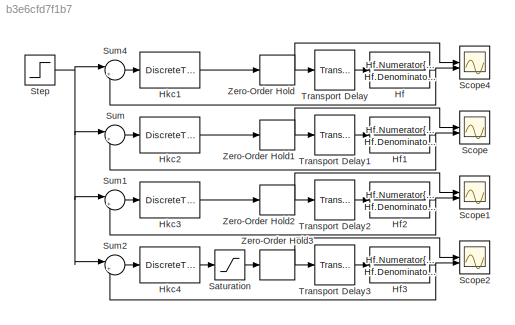
MODEL slx_b3e6cfd7f1b7
KIND model
CONFIG AbsTol = auto
CONFIG EnableMultiTasking = off
CONFIG FixedStep = auto
CONFIG MaxStep = auto
CONFIG MinStep = auto
CONFIG RelTol = 1e-3
CONFIG SampleTimeConstraint = Unconstrained
CONFIG SolverName = VariableStepAuto
CONFIG StartTime = 0.0
CONFIG StopTime = 50
BLOCK [TransferFcn] Hf
  Denominator = Hf.Denominator{1,1}
  Numerator = Hf.Numerator{1,1}
BLOCK [TransferFcn] Hf1
  Denominator = Hf.Denominator{1,1}
  Numerator = Hf.Numerator{1,1}
BLOCK [TransferFcn] Hf2
  Denominator = Hf.Denominator{1,1}
  Numerator = Hf.Numerator{1,1}
BLOCK [TransferFcn] Hf3
  Denominator = Hf.Denominator{1,1}
  Numerator = Hf.Numerator{1,1}
BLOCK [DiscreteTransferFcn] Hkc1
  Denominator = Hkc1.Denominator{1,1}
  InputPortMap = u0
  Numerator = Hkc1.Numerator{1,1}
BLOCK [DiscreteTransferFcn] Hkc2
  Denominator = Hkc2.Denominator{1,1}
  InputPortMap = u0
  Numerator = Hkc2.Numerator{1,1}
BLOCK [DiscreteTransferFcn] Hkc3
  Denominator = Hkc3.Denominator{1,1}
  InputPortMap = u0
  Numerator = Hkc3.Numerator{1,1}
BLOCK [DiscreteTransferFcn] Hkc4
  Denominator = Hkc3.Denominator{1,1}
  InputPortMap = u0
  Numerator = Hkc3.Numerator{1,1}
BLOCK [Saturate] Saturation
  LowerLimit = 0
  UpperLimit = 5
BLOCK [Scope] Scope
  Floating = off
  NumInputPorts = 2
  ScopeSpecificationString = Simulink.scopes.TimeScopeBlockCfg('CurrentConfiguration', extmgr.ConfigurationSet(extmgr.Configuration('Core','General UI',true),extmgr.Configuration('Core','Source UI',true),extmgr.Configuration('Sources','WiredSimulink',true),extmgr.Configuration('Visuals','Time Domain',true,'SerializedDisplays',{struct('MinYLimReal','-116.32714','MaxYLimReal','135.53931','YLabelReal','','MinYLimMag',' 0.00000',...<+1481ch>
BLOCK [Scope] Scope1
  Floating = off
  NumInputPorts = 2
  ScopeSpecificationString = Simulink.scopes.TimeScopeBlockCfg('CurrentConfiguration', extmgr.ConfigurationSet(extmgr.Configuration('Core','General UI',true),extmgr.Configuration('Core','Source UI',true),extmgr.Configuration('Sources','WiredSimulink',true,'DataLoggingVariableName','ScopeData2'),extmgr.Configuration('Visuals','Time Domain',true,'SerializedDisplays',{struct('MinYLimReal','-6.62272','MaxYLimReal','28.07582','YLa...<+1437ch>
BLOCK [Scope] Scope2
  Floating = off
  NumInputPorts = 2
  ScopeSpecificationString = Simulink.scopes.TimeScopeBlockCfg('CurrentConfiguration', extmgr.ConfigurationSet(extmgr.Configuration('Core','General UI',true),extmgr.Configuration('Core','Source UI',true),extmgr.Configuration('Sources','WiredSimulink',true,'DataLoggingVariableName','ScopeData3'),extmgr.Configuration('Visuals','Time Domain',true,'SerializedDisplays',{struct('MinYLimReal','-0.625','MaxYLimReal','5.625','YLabelRe...<+1421ch>
BLOCK [Scope] Scope4
  Floating = off
  NumInputPorts = 2
  ScopeSpecificationString = Simulink.scopes.TimeScopeBlockCfg('CurrentConfiguration', extmgr.ConfigurationSet(extmgr.Configuration('Core','General UI',true),extmgr.Configuration('Core','Source UI',true),extmgr.Configuration('Sources','WiredSimulink',true,'DataLoggingVariableName','ScopeData1'),extmgr.Configuration('Visuals','Time Domain',true,'SerializedDisplays',{struct('MinYLimReal','-116.32714','MaxYLimReal','135.53931','...<+1445ch>
BLOCK [Step] Step
  SampleTime = 0
  Time = 0
BLOCK [Sum] Sum
  Inputs = |+-
BLOCK [Sum] Sum1
  Inputs = |+-
BLOCK [Sum] Sum2
  Inputs = |+-
BLOCK [Sum] Sum4
  Inputs = |+-
BLOCK [TransportDelay] Transport Delay
  DelayTime = k
BLOCK [TransportDelay] Transport Delay1
  DelayTime = k
BLOCK [TransportDelay] Transport Delay2
  DelayTime = k
BLOCK [TransportDelay] Transport Delay3
  DelayTime = k
BLOCK [ZeroOrderHold] Zero-Order Hold
  SampleTime = -1
BLOCK [ZeroOrderHold] Zero-Order Hold1
  SampleTime = -1
BLOCK [ZeroOrderHold] Zero-Order Hold2
  SampleTime = -1
BLOCK [ZeroOrderHold] Zero-Order Hold3
  SampleTime = -1
NET Hf1:1 -> Scope:2, Sum:2
NET Hf2:1 -> Scope1:2, Sum1:2
NET Hf3:1 -> Scope2:2, Sum2:2
NET Hf:1 -> Scope4:2, Sum4:2
LINE Hkc1:1 -> Zero-Order Hold:1
LINE Hkc2:1 -> Zero-Order Hold1:1
LINE Hkc3:1 -> Zero-Order Hold2:1
LINE Hkc4:1 -> Saturation:1
LINE Saturation:1 -> Zero-Order Hold3:1
NET Step:1 -> Sum1:1, Sum2:1, Sum4:1, Sum:1
LINE Sum1:1 -> Hkc3:1
LINE Sum2:1 -> Hkc4:1
LINE Sum4:1 -> Hkc1:1
LINE Sum:1 -> Hkc2:1
LINE Transport Delay1:1 -> Hf1:1
LINE Transport Delay2:1 -> Hf2:1
LINE Transport Delay3:1 -> Hf3:1
LINE Transport Delay:1 -> Hf:1
NET Zero-Order Hold1:1 -> Scope:1, Transport Delay1:1
NET Zero-Order Hold2:1 -> Scope1:1, Transport Delay2:1
NET Zero-Order Hold3:1 -> Scope2:1, Transport Delay3:1
NET Zero-Order Hold:1 -> Scope4:1, Transport Delay:1
note: NET lines group one-source signal fan-out (src -> all destinations, sorted); 1:1 wires keep LINE
